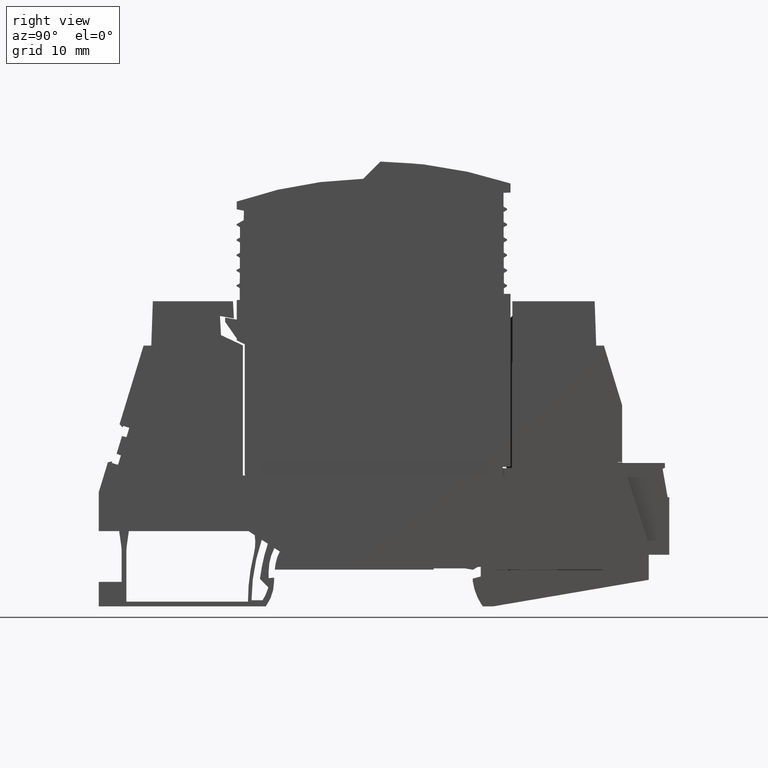
[diagram: clean part render]
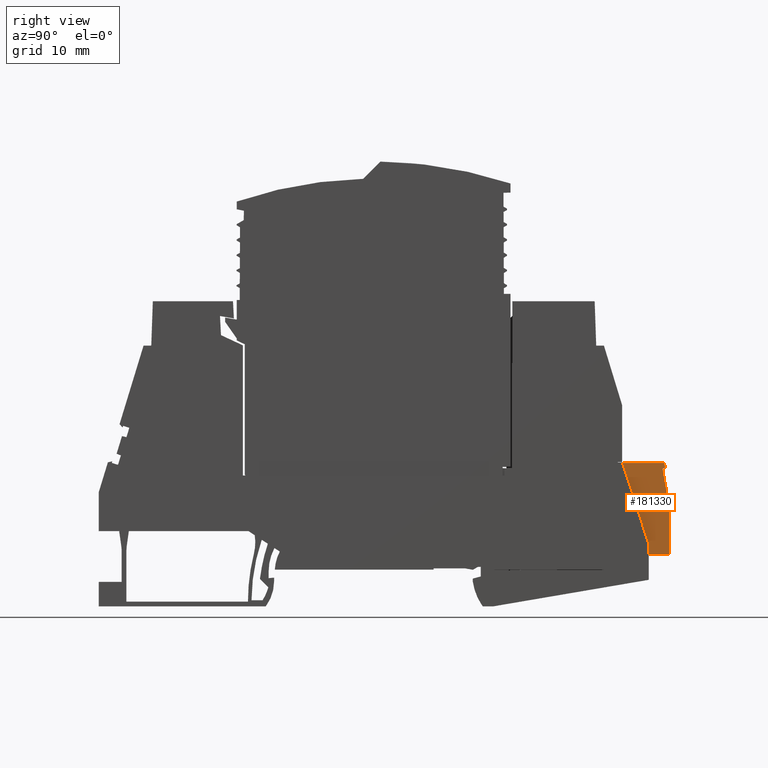
[diagram: same view with one face highlighted and labeled with its STEP entity id]
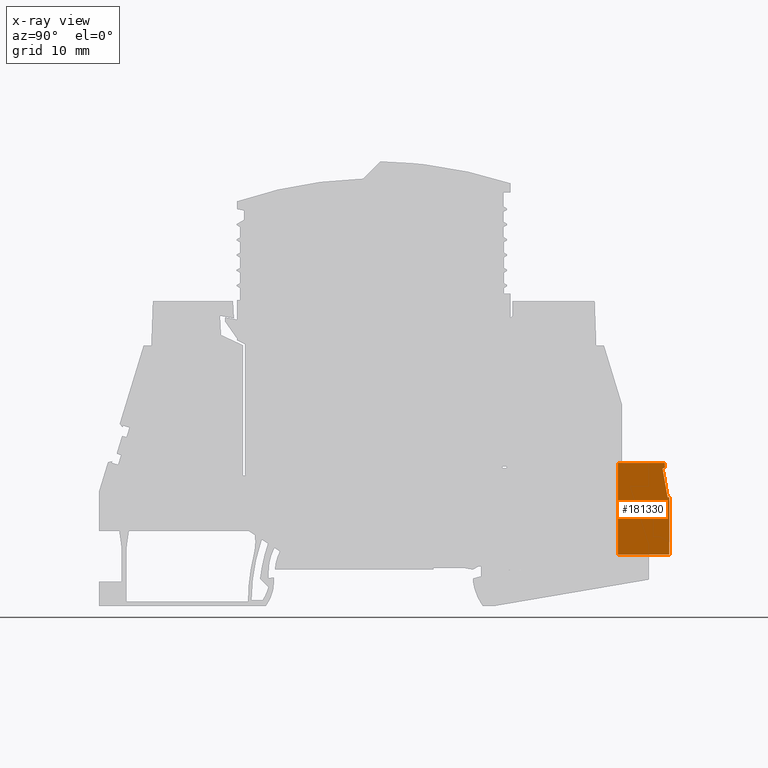
[diagram: x-ray of the same camera — body ghosted, the highlighted face saturated]
A machine part, right view. The second image highlights one B-rep face of the part: STEP entity #181330.
The next image is the same camera in x-ray: the body ghosted, the highlighted face saturated — about 0% of this face is hidden behind the body in this view.
In plain terms, the highlighted planar face has unit normal (1, -0, 0).
Its self-contained STEP definition (entity closure, byte-faithful):
#6380=CARTESIAN_POINT('',(23.9835963862817,23.5987749998904,
-49.850000000093));
#6390=VERTEX_POINT('',#6380);
#6420=CARTESIAN_POINT('',(23.9835963862817,30.210501804296,
-49.850000000093));
#6430=DIRECTION('',(0.,1.,3.15544362088405E-30));
#6440=VECTOR('',#6430,1.);
#6450=LINE('',#6420,#6440);
#6460=CARTESIAN_POINT('',(23.9835963862817,23.583774997671,
-49.850000000093));
#6470=VERTEX_POINT('',#6460);
#6480=EDGE_CURVE('',#6470,#6390,#6450,.T.);
#134120=CARTESIAN_POINT('',(29.3935965625438,23.5987749998904,
-49.850000000093));
#134130=VERTEX_POINT('',#134120);
#134300=CARTESIAN_POINT('',(29.3935965625438,38.5763782428972,
-49.850000000093));
#134310=VERTEX_POINT('',#134300);
#134340=CARTESIAN_POINT('',(29.3935965625438,15.060393,-49.850000000093)
);
#134350=DIRECTION('',(0.,1.,3.15544362088405E-30));
#134360=VECTOR('',#134350,1.);
#134370=LINE('',#134340,#134360);
#134380=EDGE_CURVE('',#134130,#134310,#134370,.T.);
#136820=CARTESIAN_POINT('',(31.3582918302057,23.5987749998904,
-49.850000000093));
#136830=DIRECTION('',(-1.,0.,0.));
#136840=VECTOR('',#136830,1.);
#136850=LINE('',#136820,#136840);
#136860=EDGE_CURVE('',#134130,#6390,#136850,.T.);
#163900=CARTESIAN_POINT('',(30.0185963862816,28.1987749998904,
-49.850000000093));
#163910=DIRECTION('',(0.,3.15544362088405E-30,-1.));
#163920=DIRECTION('',(-1.,0.,0.));
#163930=AXIS2_PLACEMENT_3D('',#163900,#163910,#163920);
#163940=PLANE('',#163930);
#166670=CARTESIAN_POINT('',(20.9835963862815,32.9987749998904,
-49.850000000093));
#166680=VERTEX_POINT('',#166670);
#166760=CARTESIAN_POINT('',(20.9835963862816,23.5837749976716,
-49.850000000093));
#166770=VERTEX_POINT('',#166760);
#166800=CARTESIAN_POINT('',(20.9835963862816,28.4870484163097,
-49.850000000093));
#166810=DIRECTION('',(0.,1.,3.15544362088405E-30));
#166820=VECTOR('',#166810,1.);
#166830=LINE('',#166800,#166820);
#166840=EDGE_CURVE('',#166770,#166680,#166830,.T.);
#179650=CARTESIAN_POINT('',(29.3204354898208,23.5837749976698,
-49.850000000093));
#179660=DIRECTION('',(1.,-2.19982271133159E-13,-6.9414165415471E-43));
#179670=VECTOR('',#179660,1.);
#179680=LINE('',#179650,#179670);
#179690=EDGE_CURVE('',#166770,#6470,#179680,.T.);
#179880=CARTESIAN_POINT('',(31.3582918302057,32.9987749998904,
-49.850000000093));
#179890=DIRECTION('',(1.,0.,0.));
#179900=VECTOR('',#179890,1.);
#179910=LINE('',#179880,#179900);
#179920=CARTESIAN_POINT('',(21.2535963862816,32.9987749998904,
-49.850000000093));
#179930=VERTEX_POINT('',#179920);
#179940=EDGE_CURVE('',#166680,#179930,#179910,.T.);
#180190=CARTESIAN_POINT('',(20.4580572600167,28.4870484163097,
-49.850000000093));
#180200=DIRECTION('',(0.173648177666932,0.984807753012208,
3.10750534203952E-30));
#180210=VECTOR('',#180200,1.);
#180220=LINE('',#180190,#180210);
#180230=CARTESIAN_POINT('',(22.06949665746,37.6259753744453,
-49.850000000093));
#180240=VERTEX_POINT('',#180230);
#180250=EDGE_CURVE('',#179930,#180240,#180220,.T.);
#180500=CARTESIAN_POINT('',(31.3582918302057,32.2630869810132,
-49.850000000093));
#180510=DIRECTION('',(-0.866025403784436,0.500000000000004,
1.57772181044204E-30));
#180520=VECTOR('',#180510,1.);
#180530=LINE('',#180500,#180520);
#180540=CARTESIAN_POINT('',(21.6835963862816,37.8487749998905,
-49.850000000093));
#180550=VERTEX_POINT('',#180540);
#180560=EDGE_CURVE('',#180240,#180550,#180530,.T.);
#180810=CARTESIAN_POINT('',(21.2748545763908,28.4870484163097,
-49.850000000093));
#180820=DIRECTION('',(-0.0436193873653321,-0.999048221581858,
-3.15244033774603E-30));
#180830=VECTOR('',#180820,1.);
#180840=LINE('',#180810,#180830);
#180850=CARTESIAN_POINT('',(21.716342093463,38.5987749998904,
-49.850000000093));
#180860=VERTEX_POINT('',#180850);
#180870=EDGE_CURVE('',#180860,#180550,#180840,.T.);
#181070=CARTESIAN_POINT('',(29.2311943037294,37.9987749998904,
-49.850000000093));
#181080=DIRECTION('',(0.,-3.15544362088405E-30,1.));
#181090=DIRECTION('',(1.,0.,0.));
#181100=AXIS2_PLACEMENT_3D('',#181070,#181080,#181090);
#181110=CIRCLE('',#181100,0.6);
#181120=CARTESIAN_POINT('',(29.2311943037294,38.5987749998904,
-49.850000000093));
#181130=VERTEX_POINT('',#181120);
#181140=EDGE_CURVE('',#134310,#181130,#181110,.T.);
#181150=ORIENTED_EDGE('',*,*,#181140,.F.);
#181160=CARTESIAN_POINT('',(31.3582918302057,38.5987749998904,
-49.850000000093));
#181170=DIRECTION('',(1.,0.,0.));
#181180=VECTOR('',#181170,1.);
#181190=LINE('',#181160,#181180);
#181200=EDGE_CURVE('',#180860,#181130,#181190,.T.);
#181210=ORIENTED_EDGE('',*,*,#181200,.T.);
#181220=ORIENTED_EDGE('',*,*,#180870,.F.);
#181230=ORIENTED_EDGE('',*,*,#180560,.T.);
#181240=ORIENTED_EDGE('',*,*,#180250,.T.);
#181250=ORIENTED_EDGE('',*,*,#179940,.T.);
#181260=ORIENTED_EDGE('',*,*,#166840,.T.);
#181270=ORIENTED_EDGE('',*,*,#179690,.F.);
#181280=ORIENTED_EDGE('',*,*,#6480,.F.);
#181290=ORIENTED_EDGE('',*,*,#136860,.T.);
#181300=ORIENTED_EDGE('',*,*,#134380,.F.);
#181310=EDGE_LOOP('',(#181300,#181290,#181280,#181270,#181260,#181250,
#181240,#181230,#181220,#181210,#181150));
#181320=FACE_OUTER_BOUND('',#181310,.T.);
#181330=ADVANCED_FACE('',(#181320),#163940,.T.);